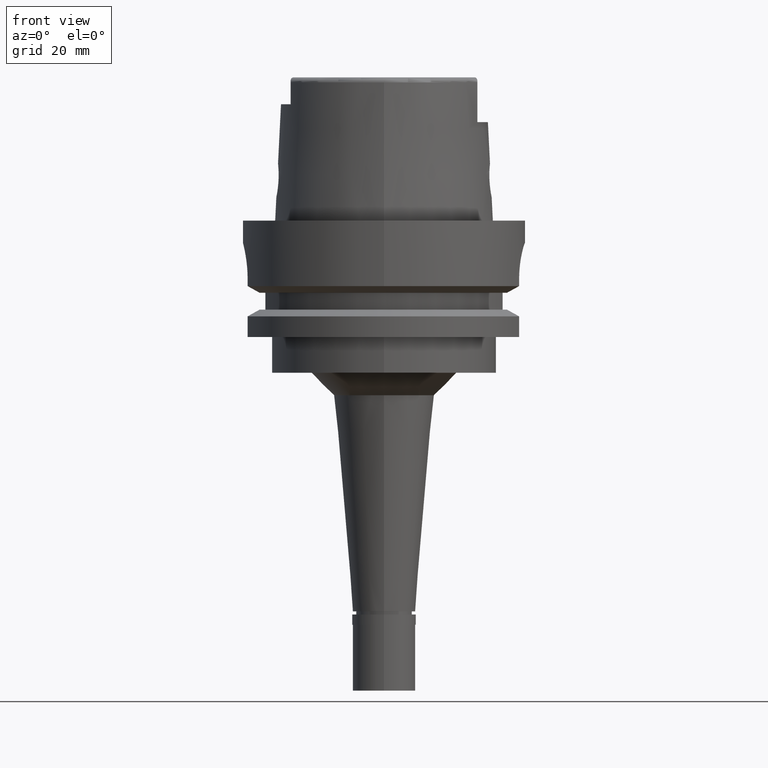
[diagram: clean part render]
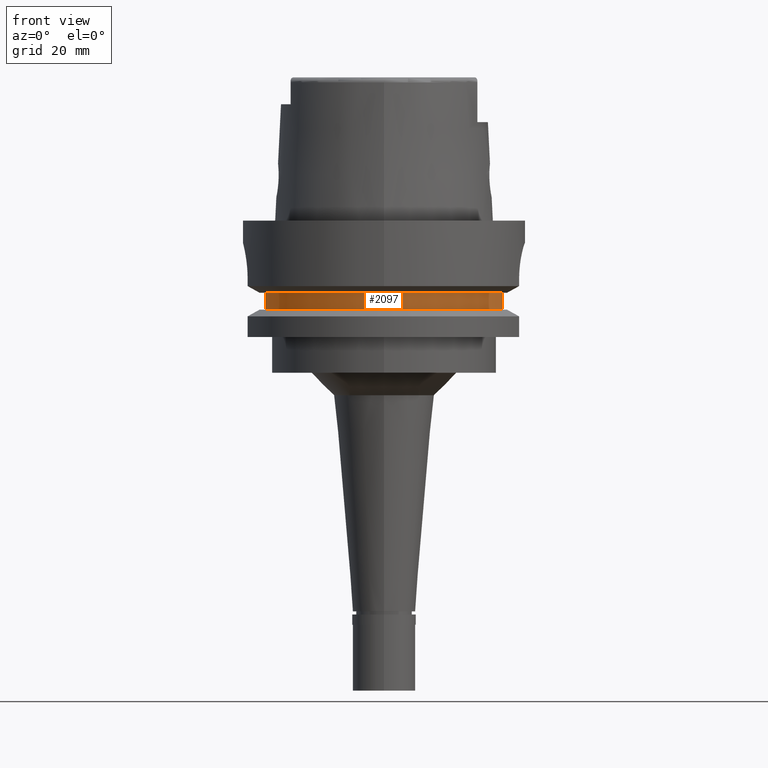
[diagram: same view with one face highlighted and labeled with its STEP entity id]
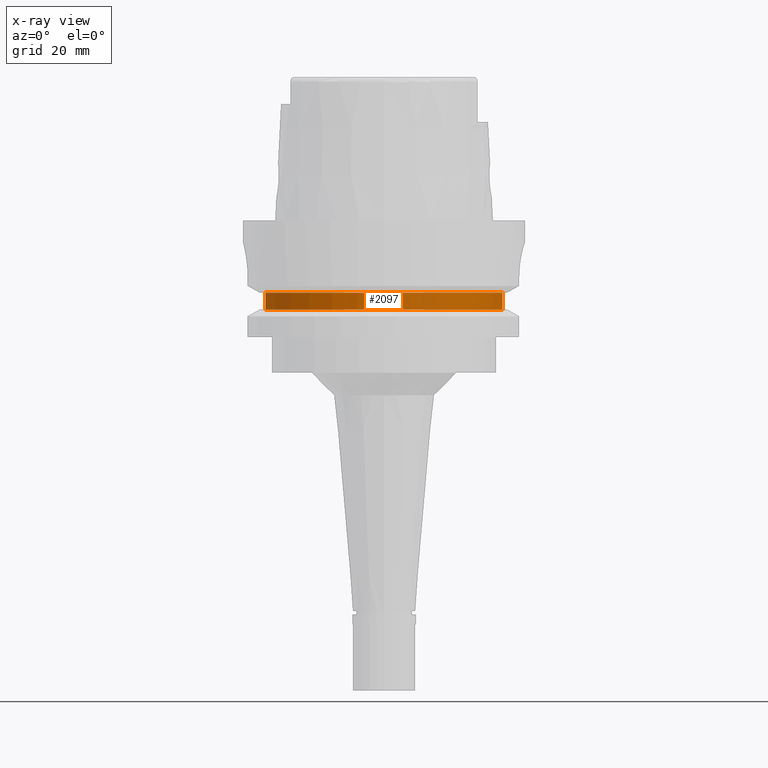
[diagram: x-ray of the same camera — body ghosted, the highlighted face saturated]
A machine part, front view. The second image highlights one B-rep face of the part: STEP entity #2097.
The next image is the same camera in x-ray: the body ghosted, the highlighted face saturated — about 0% of this face is hidden behind the body in this view.
In plain terms, the highlighted cylindrical surface (partial cylindrical patch) has radius 27.5 mm, axis along (0, 0, -1).
Its self-contained STEP definition (entity closure, byte-faithful):
#315 = VERTEX_POINT ( 'NONE', #2980 ) ;
#371 = LINE ( 'NONE', #3273, #1199 ) ;
#474 = AXIS2_PLACEMENT_3D ( 'NONE', #866, #1809, #1781 ) ;
#622 = VERTEX_POINT ( 'NONE', #3709 ) ;
#866 = CARTESIAN_POINT ( 'NONE',  ( 0.0000000000000000000, 0.0000000000000000000, -16.12500000000000000 ) ) ;
#867 = ORIENTED_EDGE ( 'NONE', *, *, #5315, .T. ) ;
#1023 = CARTESIAN_POINT ( 'NONE',  ( 0.0000000000000000000, 0.0000000000000000000, -19.87500000000000000 ) ) ;
#1111 = VECTOR ( 'NONE', #4411, 1000.000000000000000 ) ;
#1125 = DIRECTION ( 'NONE',  ( 0.0000000000000000000, 0.0000000000000000000, -1.000000000000000000 ) ) ;
#1199 = VECTOR ( 'NONE', #5442, 1000.000000000000000 ) ;
#1242 = EDGE_CURVE ( 'NONE', #4294, #622, #3977, .T. ) ;
#1301 = ORIENTED_EDGE ( 'NONE', *, *, #1705, .T. ) ;
#1568 = CIRCLE ( 'NONE', #3162, 27.50000000000000000 ) ;
#1705 = EDGE_CURVE ( 'NONE', #4294, #315, #1568, .T. ) ;
#1781 = DIRECTION ( 'NONE',  ( 0.0000000000000000000, -1.000000000000000000, 0.0000000000000000000 ) ) ;
#1809 = DIRECTION ( 'NONE',  ( 0.0000000000000000000, 0.0000000000000000000, -1.000000000000000000 ) ) ;
#2097 = ADVANCED_FACE ( 'NONE', ( #3589 ), #3233, .T. ) ;
#2553 = EDGE_CURVE ( 'NONE', #3861, #315, #371, .T. ) ;
#2596 = EDGE_LOOP ( 'NONE', ( #4527, #1301, #3400, #867 ) ) ;
#2737 = CARTESIAN_POINT ( 'NONE',  ( -26.50000000000000000, -7.348469228349999938, -19.87500000000000000 ) ) ;
#2760 = CARTESIAN_POINT ( 'NONE',  ( 0.0000000000000000000, 0.0000000000000000000, 38.64999999999999858 ) ) ;
#2980 = CARTESIAN_POINT ( 'NONE',  ( 26.50000000000000000, -7.348469228349999938, -19.87500000000000000 ) ) ;
#3162 = AXIS2_PLACEMENT_3D ( 'NONE', #1023, #3192, #5373 ) ;
#3192 = DIRECTION ( 'NONE',  ( 0.0000000000000000000, 0.0000000000000000000, 1.000000000000000000 ) ) ;
#3218 = CIRCLE ( 'NONE', #474, 27.50000000000000000 ) ;
#3233 = CYLINDRICAL_SURFACE ( 'NONE', #4996, 27.50000000000000000 ) ;
#3273 = CARTESIAN_POINT ( 'NONE',  ( 26.50000000000000000, -7.348469228349999938, -16.12500000000000000 ) ) ;
#3400 = ORIENTED_EDGE ( 'NONE', *, *, #2553, .F. ) ;
#3589 = FACE_OUTER_BOUND ( 'NONE', #2596, .T. ) ;
#3709 = CARTESIAN_POINT ( 'NONE',  ( -26.50000000000000000, -7.348469228349999938, -16.12500000000000000 ) ) ;
#3861 = VERTEX_POINT ( 'NONE', #4495 ) ;
#3977 = LINE ( 'NONE', #2737, #1111 ) ;
#3999 = CARTESIAN_POINT ( 'NONE',  ( -26.50000000000000000, -7.348469228349999938, -19.87500000000000000 ) ) ;
#4294 = VERTEX_POINT ( 'NONE', #3999 ) ;
#4411 = DIRECTION ( 'NONE',  ( 0.0000000000000000000, 0.0000000000000000000, 1.000000000000000000 ) ) ;
#4495 = CARTESIAN_POINT ( 'NONE',  ( 26.50000000000000000, -7.348469228349999938, -16.12500000000000000 ) ) ;
#4527 = ORIENTED_EDGE ( 'NONE', *, *, #1242, .F. ) ;
#4906 = DIRECTION ( 'NONE',  ( 0.0000000000000000000, -1.000000000000000000, 0.0000000000000000000 ) ) ;
#4996 = AXIS2_PLACEMENT_3D ( 'NONE', #2760, #1125, #4906 ) ;
#5315 = EDGE_CURVE ( 'NONE', #3861, #622, #3218, .T. ) ;
#5373 = DIRECTION ( 'NONE',  ( 0.0000000000000000000, -1.000000000000000000, 0.0000000000000000000 ) ) ;
#5442 = DIRECTION ( 'NONE',  ( 0.0000000000000000000, 0.0000000000000000000, -1.000000000000000000 ) ) ;